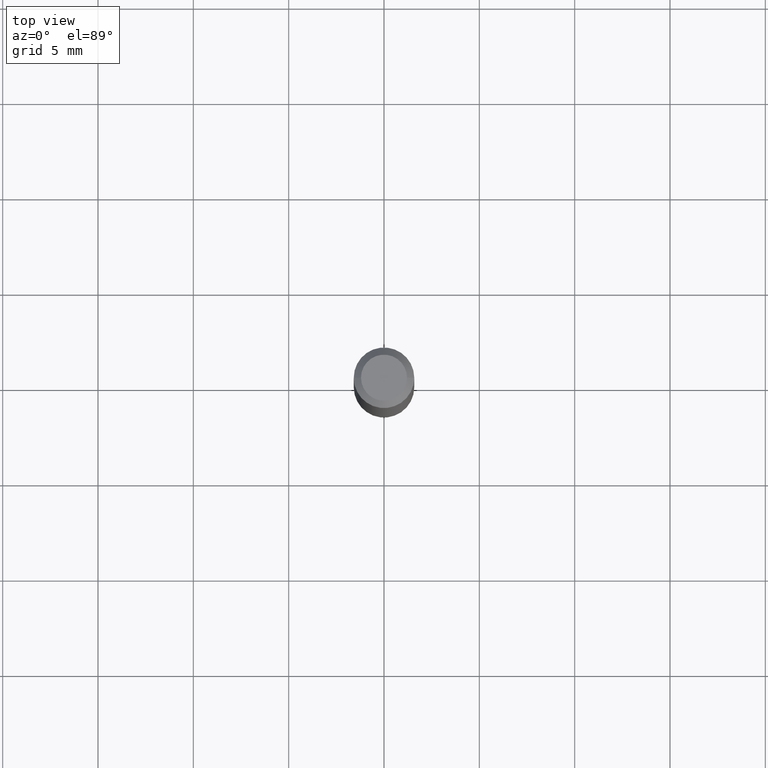
[diagram: clean part render]
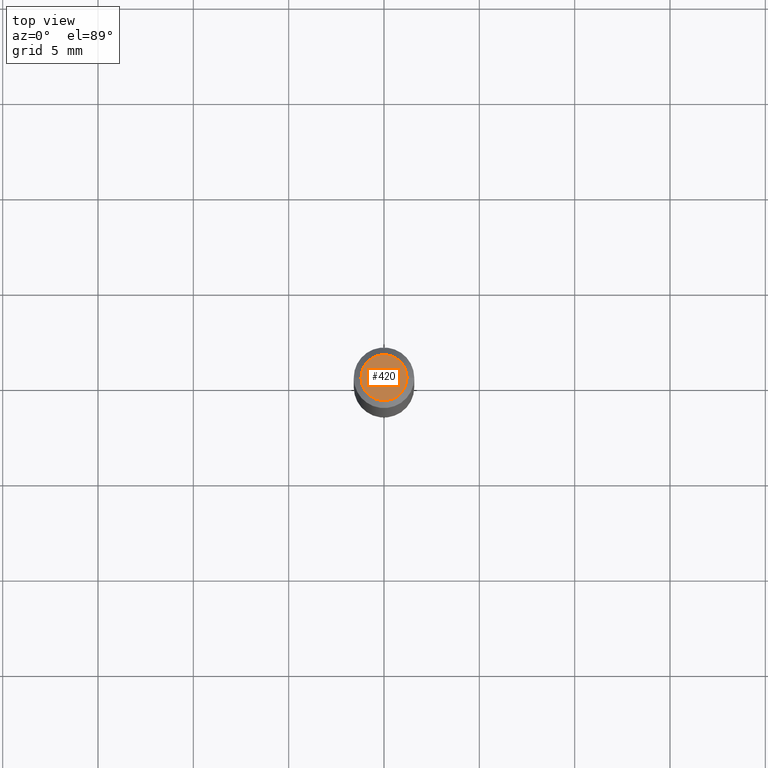
[diagram: same view with one face highlighted and labeled with its STEP entity id]
A machine part, top view. The second image highlights one B-rep face of the part: STEP entity #420.
In plain terms, the highlighted planar face has unit normal (0, -0, -1).
Its self-contained STEP definition (entity closure, byte-faithful):
#38 = FACE_OUTER_BOUND ( 'NONE', #238, .T. ) ;
#101 = CIRCLE ( 'NONE', #393, 0.04750000000000000749 ) ;
#112 = CARTESIAN_POINT ( 'NONE',  ( 0.04750000000000000749, -4.035134999187568762E-16, 2.731847993664288856E-16 ) ) ;
#121 = CARTESIAN_POINT ( 'NONE',  ( -6.680649051745406845E-45, 9.538196290434862081E-31, 2.731847993664263218E-16 ) ) ;
#127 = VERTEX_POINT ( 'NONE', #284 ) ;
#141 = DIRECTION ( 'NONE',  ( 2.438088387897960049E-29, -3.491481338843145188E-15, -1.000000000000000000 ) ) ;
#156 = DIRECTION ( 'NONE',  ( 1.000000000000000000, -6.982962677686266711E-15, 4.852736867747365086E-29 ) ) ;
#157 = EDGE_CURVE ( 'NONE', #127, #358, #101, .T. ) ;
#179 = DIRECTION ( 'NONE',  ( 1.000000000000000000, -6.982962677686266711E-15, 4.852736867747365086E-29 ) ) ;
#238 = EDGE_LOOP ( 'NONE', ( #504, #437 ) ) ;
#253 = DIRECTION ( 'NONE',  ( -2.445468806185136597E-29, 3.491481338843145583E-15, 1.000000000000000000 ) ) ;
#261 = EDGE_CURVE ( 'NONE', #358, #127, #360, .T. ) ;
#284 = CARTESIAN_POINT ( 'NONE',  ( -0.04750000000000000749, 3.578768372314221353E-16, 2.731847993664239060E-16 ) ) ;
#290 = AXIS2_PLACEMENT_3D ( 'NONE', #121, #514, #156 ) ;
#329 = PLANE ( 'NONE',  #363 ) ;
#358 = VERTEX_POINT ( 'NONE', #112 ) ;
#360 = CIRCLE ( 'NONE', #290, 0.04750000000000000749 ) ;
#363 = AXIS2_PLACEMENT_3D ( 'NONE', #499, #141, #451 ) ;
#393 = AXIS2_PLACEMENT_3D ( 'NONE', #453, #253, #179 ) ;
#420 = ADVANCED_FACE ( 'NONE', ( #38 ), #329, .F. ) ;
#437 = ORIENTED_EDGE ( 'NONE', *, *, #261, .T. ) ;
#451 = DIRECTION ( 'NONE',  ( -1.000000000000000000, 6.982962677686265922E-15, -4.876176775795935793E-29 ) ) ;
#453 = CARTESIAN_POINT ( 'NONE',  ( -6.680649051745406845E-45, 9.538196290434862081E-31, 2.731847993664263218E-16 ) ) ;
#499 = CARTESIAN_POINT ( 'NONE',  ( 3.316907271900976589E-16, 0.04750000000000000749, -2.925296391183627249E-17 ) ) ;
#504 = ORIENTED_EDGE ( 'NONE', *, *, #157, .T. ) ;
#514 = DIRECTION ( 'NONE',  ( -2.445468806185136597E-29, 3.491481338843145583E-15, 1.000000000000000000 ) ) ;